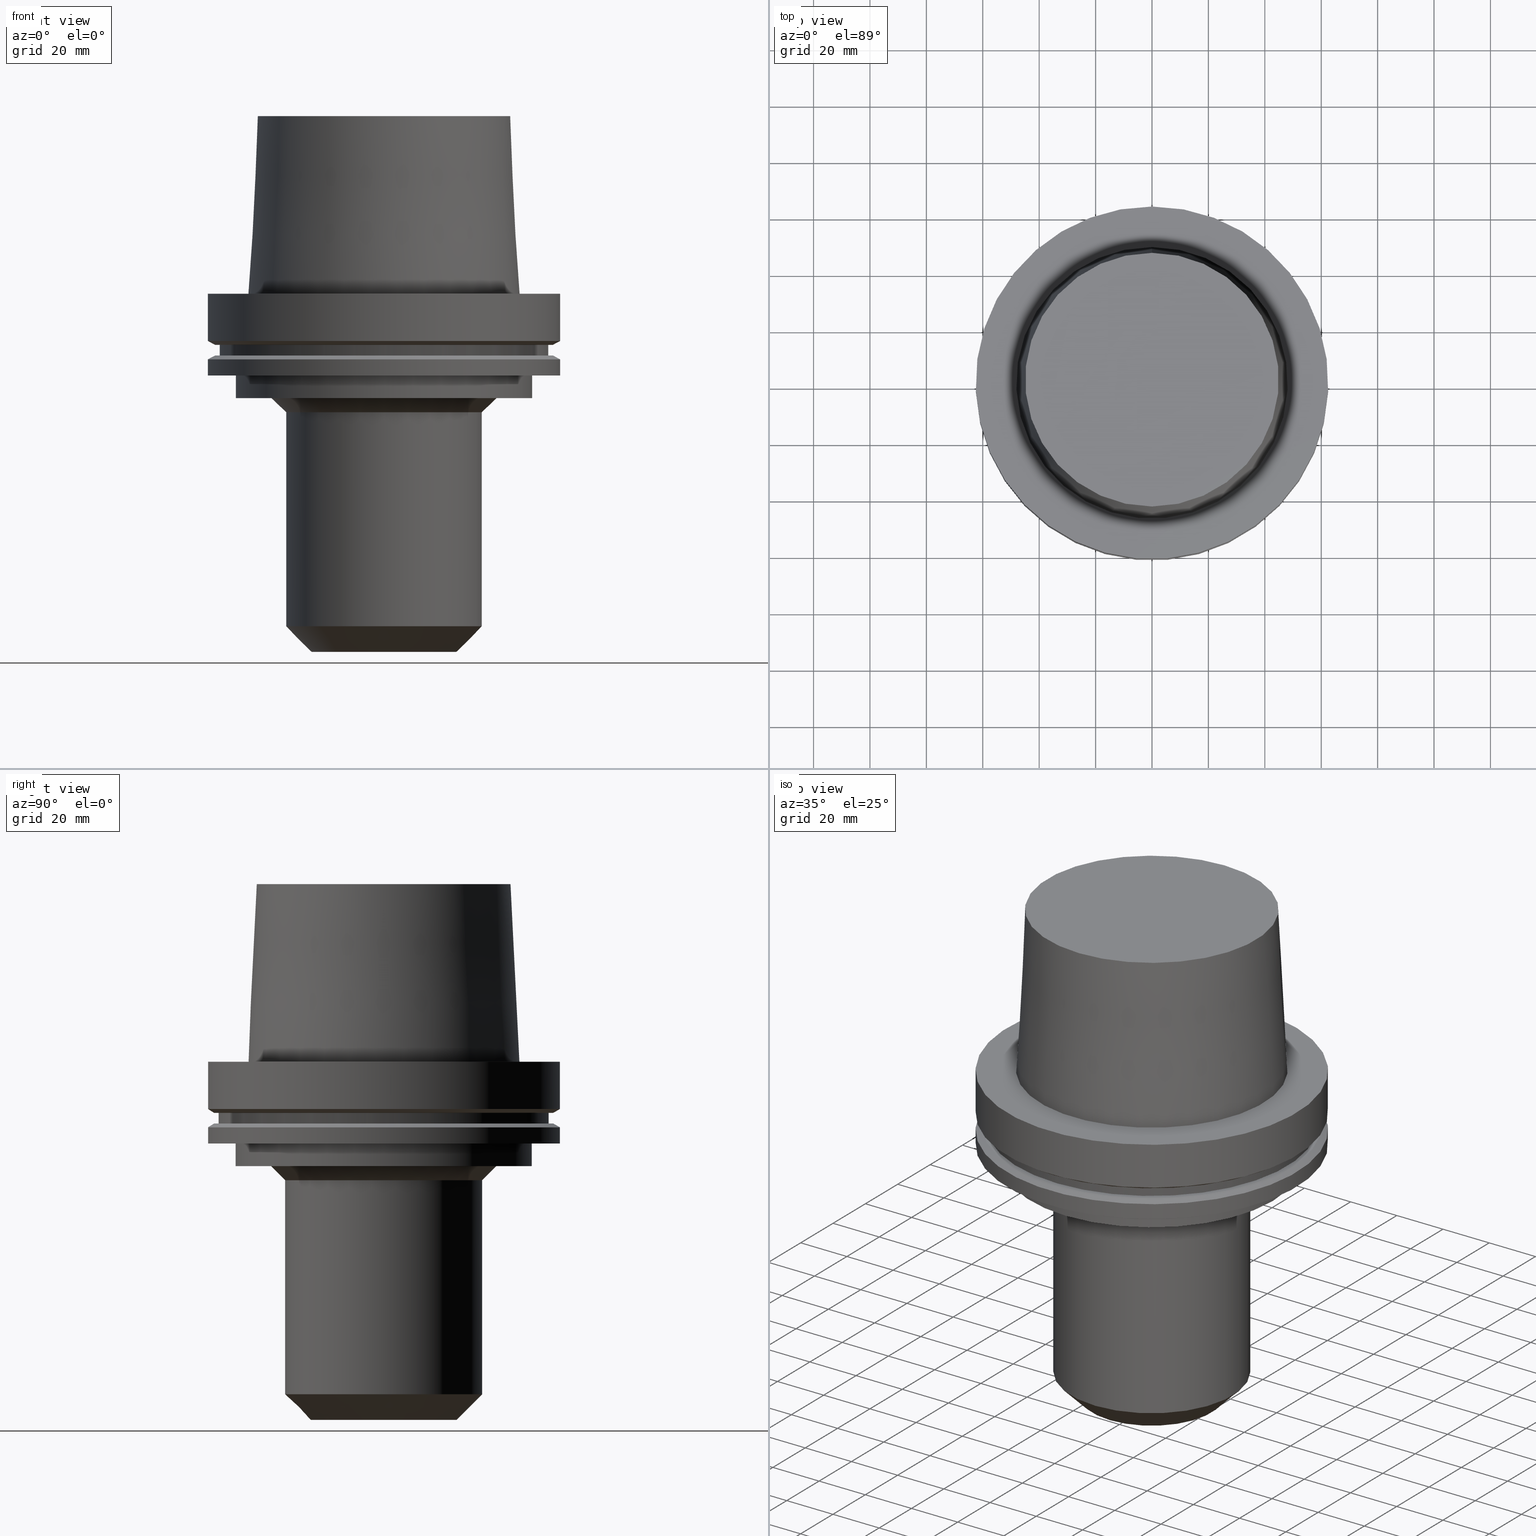
[diagram: canonical four-view strip — front | top / right | iso, engineering-drawing reading convention]
A machine part, canonical four-view strip (front | top / right | iso — engineering-drawing reading convention). The complete STEP part file that produces these views, byte-faithful:
ISO-10303-21;
HEADER;
FILE_DESCRIPTION((''),'1');
FILE_NAME('V:/02_3D_Field-HP\X2\FF71FF6FFF8CFF9F5916\X0\2013/02_Step_Field-HP\X2\FF71FF6FFF8CFF9F5916\X0\2013/HSK-A125-EM1.250-5.stp','2017-07-11T00:21:58',(''),(''),'Spatial Interop R21 SP3','Kubotek KeyCreator 2011 V10.0.2 (22737)',' ');
FILE_SCHEMA(('automotive_design'));
ENDSEC;
DATA;
#1=MECHANICAL_DESIGN_GEOMETRIC_PRESENTATION_REPRESENTATION(' ',(#10,#11,#12,#13,#14,#15,#16,#17,#18,#19,#20,#21,#22,#23,#24,#25,#26,#27,#28,#29,#30,#31,#32,#33,#34,#35,#36,#37,#38,#39,#40,#41,#42,#43),#6);
#2=PRODUCT_DEFINITION_CONTEXT('',#44,'design');
#3=APPLICATION_PROTOCOL_DEFINITION('INTERNATIONAL STANDARD','automotive_design',1994,#44);
#4=PRODUCT_CATEGORY_RELATIONSHIP('NONE','NONE',#45,#46);
#5=SHAPE_DEFINITION_REPRESENTATION(#47,#48);
#6= (GEOMETRIC_REPRESENTATION_CONTEXT(3)GLOBAL_UNCERTAINTY_ASSIGNED_CONTEXT((#51))GLOBAL_UNIT_ASSIGNED_CONTEXT((#53,#54,#55))REPRESENTATION_CONTEXT('NONE','WORKSPACE'));
#10=STYLED_ITEM('',(#57),#58);
#11=STYLED_ITEM('',(#59,#60),#61);
#12=STYLED_ITEM('',(#62,#63),#64);
#13=STYLED_ITEM('',(#65,#66),#67);
#14=STYLED_ITEM('',(#68),#69);
#15=STYLED_ITEM('',(#70,#71),#72);
#16=STYLED_ITEM('',(#73),#74);
#17=STYLED_ITEM('',(#75,#76),#77);
#18=STYLED_ITEM('',(#78),#79);
#19=STYLED_ITEM('',(#80,#81),#82);
#20=STYLED_ITEM('',(#83),#84);
#21=STYLED_ITEM('',(#85),#86);
#22=STYLED_ITEM('',(#87),#88);
#23=STYLED_ITEM('',(#89),#90);
#24=STYLED_ITEM('',(#91),#92);
#25=STYLED_ITEM('',(#93),#94);
#26=STYLED_ITEM('',(#95,#96),#97);
#27=STYLED_ITEM('',(#98),#99);
#28=STYLED_ITEM('',(#100,#101),#102);
#29=STYLED_ITEM('',(#103,#104),#105);
#30=STYLED_ITEM('',(#106),#107);
#31=STYLED_ITEM('',(#108),#109);
#32=STYLED_ITEM('',(#110),#111);
#33=STYLED_ITEM('',(#112),#113);
#34=STYLED_ITEM('',(#114,#115),#116);
#35=STYLED_ITEM('',(#117,#118),#119);
#36=STYLED_ITEM('',(#120,#121),#122);
#37=STYLED_ITEM('',(#123,#124),#125);
#38=STYLED_ITEM('',(#126,#127),#128);
#39=STYLED_ITEM('',(#129,#130),#131);
#40=STYLED_ITEM('',(#132,#133),#134);
#41=STYLED_ITEM('',(#135,#136),#137);
#42=STYLED_ITEM('',(#138,#139),#140);
#43=STYLED_ITEM('',(#141),#142);
#44=APPLICATION_CONTEXT(' ');
#45=PRODUCT_CATEGORY('part','NONE');
#46=PRODUCT_RELATED_PRODUCT_CATEGORY('detail',' ',(#143));
#47=PRODUCT_DEFINITION_SHAPE('NONE','NONE',#144);
#48=ADVANCED_BREP_SHAPE_REPRESENTATION('Unnamed[1]',(#61,#145),#6);
#51=UNCERTAINTY_MEASURE_WITH_UNIT(LENGTH_MEASURE(1.0E-006),#53,'','');
#53= (CONVERSION_BASED_UNIT('MILLIMETRE',#148)LENGTH_UNIT()NAMED_UNIT(#151));
#54= (NAMED_UNIT(#153)PLANE_ANGLE_UNIT()SI_UNIT($,.RADIAN.));
#55= (NAMED_UNIT(#153)SOLID_ANGLE_UNIT()SI_UNIT($,.STERADIAN.));
#57=PRESENTATION_STYLE_ASSIGNMENT((#159));
#58=EDGE_CURVE('Unnamed[1]',#160,#160,#161,.T.);
#59=PRESENTATION_STYLE_ASSIGNMENT((#162));
#60=PRESENTATION_STYLE_ASSIGNMENT((#163));
#61=MANIFOLD_SOLID_BREP('Unnamed[1]',#164);
#62=PRESENTATION_STYLE_ASSIGNMENT((#165));
#63=PRESENTATION_STYLE_ASSIGNMENT((#166));
#64=ADVANCED_FACE('Unnamed[1]',(#167),#168,.T.);
#65=PRESENTATION_STYLE_ASSIGNMENT((#169));
#66=PRESENTATION_STYLE_ASSIGNMENT((#170));
#67=ADVANCED_FACE('Unnamed[1]',(#171,#172),#173,.T.);
#68=PRESENTATION_STYLE_ASSIGNMENT((#174));
#69=EDGE_CURVE('Unnamed[1]',#175,#175,#176,.T.);
#70=PRESENTATION_STYLE_ASSIGNMENT((#177));
#71=PRESENTATION_STYLE_ASSIGNMENT((#178));
#72=ADVANCED_FACE('Unnamed[1]',(#179,#180),#181,.T.);
#73=PRESENTATION_STYLE_ASSIGNMENT((#182));
#74=EDGE_CURVE('Unnamed[1]',#183,#183,#184,.T.);
#75=PRESENTATION_STYLE_ASSIGNMENT((#185));
#76=PRESENTATION_STYLE_ASSIGNMENT((#186));
#77=ADVANCED_FACE('Unnamed[1]',(#187,#188),#189,.T.);
#78=PRESENTATION_STYLE_ASSIGNMENT((#190));
#79=EDGE_CURVE('Unnamed[1]',#191,#191,#192,.T.);
#80=PRESENTATION_STYLE_ASSIGNMENT((#193));
#81=PRESENTATION_STYLE_ASSIGNMENT((#194));
#82=ADVANCED_FACE('Unnamed[1]',(#195,#196),#197,.T.);
#83=PRESENTATION_STYLE_ASSIGNMENT((#198));
#84=EDGE_CURVE('Unnamed[1]',#199,#199,#200,.T.);
#85=PRESENTATION_STYLE_ASSIGNMENT((#201));
#86=EDGE_CURVE('Unnamed[1]',#202,#202,#203,.T.);
#87=PRESENTATION_STYLE_ASSIGNMENT((#204));
#88=EDGE_CURVE('Unnamed[1]',#205,#205,#206,.T.);
#89=PRESENTATION_STYLE_ASSIGNMENT((#207));
#90=EDGE_CURVE('Unnamed[1]',#208,#208,#209,.T.);
#91=PRESENTATION_STYLE_ASSIGNMENT((#210));
#92=EDGE_CURVE('Unnamed[1]',#211,#211,#212,.T.);
#93=PRESENTATION_STYLE_ASSIGNMENT((#213));
#94=EDGE_CURVE('Unnamed[1]',#214,#214,#215,.T.);
#95=PRESENTATION_STYLE_ASSIGNMENT((#216));
#96=PRESENTATION_STYLE_ASSIGNMENT((#217));
#97=ADVANCED_FACE('Unnamed[1]',(#218,#219),#220,.T.);
#98=PRESENTATION_STYLE_ASSIGNMENT((#221));
#99=EDGE_CURVE('Unnamed[1]',#222,#222,#223,.T.);
#100=PRESENTATION_STYLE_ASSIGNMENT((#224));
#101=PRESENTATION_STYLE_ASSIGNMENT((#225));
#102=ADVANCED_FACE('Unnamed[1]',(#226,#227),#228,.T.);
#103=PRESENTATION_STYLE_ASSIGNMENT((#229));
#104=PRESENTATION_STYLE_ASSIGNMENT((#230));
#105=ADVANCED_FACE('Unnamed[1]',(#231,#232),#233,.T.);
#106=PRESENTATION_STYLE_ASSIGNMENT((#234));
#107=EDGE_CURVE('Unnamed[1]',#235,#235,#236,.T.);
#108=PRESENTATION_STYLE_ASSIGNMENT((#237));
#109=EDGE_CURVE('Unnamed[1]',#238,#238,#239,.T.);
#110=PRESENTATION_STYLE_ASSIGNMENT((#240));
#111=EDGE_CURVE('Unnamed[1]',#241,#241,#242,.T.);
#112=PRESENTATION_STYLE_ASSIGNMENT((#243));
#113=EDGE_CURVE('Unnamed[1]',#244,#244,#245,.T.);
#114=PRESENTATION_STYLE_ASSIGNMENT((#246));
#115=PRESENTATION_STYLE_ASSIGNMENT((#247));
#116=ADVANCED_FACE('Unnamed[1]',(#248,#249),#250,.T.);
#117=PRESENTATION_STYLE_ASSIGNMENT((#251));
#118=PRESENTATION_STYLE_ASSIGNMENT((#252));
#119=ADVANCED_FACE('Unnamed[1]',(#253,#254),#255,.T.);
#120=PRESENTATION_STYLE_ASSIGNMENT((#256));
#121=PRESENTATION_STYLE_ASSIGNMENT((#257));
#122=ADVANCED_FACE('Unnamed[1]',(#258,#259),#260,.T.);
#123=PRESENTATION_STYLE_ASSIGNMENT((#261));
#124=PRESENTATION_STYLE_ASSIGNMENT((#262));
#125=ADVANCED_FACE('Unnamed[1]',(#263,#264),#265,.T.);
#126=PRESENTATION_STYLE_ASSIGNMENT((#266));
#127=PRESENTATION_STYLE_ASSIGNMENT((#267));
#128=ADVANCED_FACE('Unnamed[1]',(#268,#269),#270,.T.);
#129=PRESENTATION_STYLE_ASSIGNMENT((#271));
#130=PRESENTATION_STYLE_ASSIGNMENT((#272));
#131=ADVANCED_FACE('Unnamed[1]',(#273,#274),#275,.T.);
#132=PRESENTATION_STYLE_ASSIGNMENT((#276));
#133=PRESENTATION_STYLE_ASSIGNMENT((#277));
#134=ADVANCED_FACE('Unnamed[1]',(#278,#279),#280,.T.);
#135=PRESENTATION_STYLE_ASSIGNMENT((#281));
#136=PRESENTATION_STYLE_ASSIGNMENT((#282));
#137=ADVANCED_FACE('Unnamed[1]',(#283,#284),#285,.T.);
#138=PRESENTATION_STYLE_ASSIGNMENT((#286));
#139=PRESENTATION_STYLE_ASSIGNMENT((#287));
#140=ADVANCED_FACE('Unnamed[1]',(#288),#289,.T.);
#141=PRESENTATION_STYLE_ASSIGNMENT((#290));
#142=EDGE_CURVE('Unnamed[1]',#291,#291,#292,.T.);
#143=PRODUCT('Unnamed[1]','Unnamed[1]','PART-Unnamed[1]-DESC',(#293));
#144=PRODUCT_DEFINITION('NONE','NONE',#294,#2);
#145=AXIS2_PLACEMENT_3D('',#295,#296,#297);
#148=LENGTH_MEASURE_WITH_UNIT(LENGTH_MEASURE(1.0),#298);
#151=DIMENSIONAL_EXPONENTS(1.0,0.0,0.0,0.0,0.0,0.0,0.0);
#153=DIMENSIONAL_EXPONENTS(0.0,0.0,0.0,0.0,0.0,0.0,0.0);
#159=CURVE_STYLE('',#299,POSITIVE_LENGTH_MEASURE(1000.0),#300);
#160=VERTEX_POINT('',#301);
#161=CIRCLE('',#302,34.9249999999999);
#162=SURFACE_STYLE_USAGE(.BOTH.,#303);
#163=CURVE_STYLE('',#304,POSITIVE_LENGTH_MEASURE(1000.0),#305);
#164=CLOSED_SHELL('',(#140,#77,#82,#134,#116,#137,#128,#105,#67,#102,#131,#72,#119,#122,#97,#125,#64));
#165=SURFACE_STYLE_USAGE(.BOTH.,#306);
#166=CURVE_STYLE('',#307,POSITIVE_LENGTH_MEASURE(1000.0),#308);
#167=FACE_OUTER_BOUND('',#309,.T.);
#168=PLANE('',#310);
#169=SURFACE_STYLE_USAGE(.BOTH.,#311);
#170=CURVE_STYLE('',#312,POSITIVE_LENGTH_MEASURE(1000.0),#313);
#171=FACE_BOUND('',#314,.T.);
#172=FACE_BOUND('',#315,.T.);
#173=CONICAL_SURFACE('',#316,61.311297632097,1.04719755119646);
#174=CURVE_STYLE('',#317,POSITIVE_LENGTH_MEASURE(1000.0),#318);
#175=VERTEX_POINT('',#319);
#176=CIRCLE('',#320,39.9249999999998);
#177=SURFACE_STYLE_USAGE(.BOTH.,#321);
#178=CURVE_STYLE('',#322,POSITIVE_LENGTH_MEASURE(1000.0),#323);
#179=FACE_BOUND('',#324,.T.);
#180=FACE_BOUND('',#325,.T.);
#181=CYLINDRICAL_SURFACE('',#326,52.5);
#182=CURVE_STYLE('',#327,POSITIVE_LENGTH_MEASURE(1000.0),#328);
#183=VERTEX_POINT('',#329);
#184=CIRCLE('',#330,44.9779398797591);
#185=SURFACE_STYLE_USAGE(.BOTH.,#331);
#186=CURVE_STYLE('',#332,POSITIVE_LENGTH_MEASURE(1000.0),#333);
#187=FACE_BOUND('',#334,.T.);
#188=FACE_BOUND('',#335,.T.);
#189=CONICAL_SURFACE('',#336,46.5560961923844,0.0500583457465986);
#190=CURVE_STYLE('',#337,POSITIVE_LENGTH_MEASURE(1000.0),#338);
#191=VERTEX_POINT('',#339);
#192=CIRCLE('',#340,48.1342525050097);
#193=SURFACE_STYLE_USAGE(.BOTH.,#341);
#194=CURVE_STYLE('',#342,POSITIVE_LENGTH_MEASURE(1000.0),#343);
#195=FACE_OUTER_BOUND('',#344,.T.);
#196=FACE_BOUND('',#345,.T.);
#197=PLANE('',#346);
#198=CURVE_STYLE('',#347,POSITIVE_LENGTH_MEASURE(1000.0),#348);
#199=VERTEX_POINT('',#349);
#200=CIRCLE('',#350,60.1225952641939);
#201=CURVE_STYLE('',#351,POSITIVE_LENGTH_MEASURE(1000.0),#352);
#202=VERTEX_POINT('',#353);
#203=CIRCLE('',#354,52.4999999999997);
#204=CURVE_STYLE('',#355,POSITIVE_LENGTH_MEASURE(1000.0),#356);
#205=VERTEX_POINT('',#357);
#206=CIRCLE('',#358,58.4999999999998);
#207=CURVE_STYLE('',#359,POSITIVE_LENGTH_MEASURE(1000.0),#360);
#208=VERTEX_POINT('',#361);
#209=CIRCLE('',#362,62.5000000000002);
#210=CURVE_STYLE('',#363,POSITIVE_LENGTH_MEASURE(1000.0),#364);
#211=VERTEX_POINT('',#365);
#212=CIRCLE('',#366,62.5);
#213=CURVE_STYLE('',#367,POSITIVE_LENGTH_MEASURE(1000.0),#368);
#214=VERTEX_POINT('',#369);
#215=CIRCLE('',#370,52.5000000000002);
#216=SURFACE_STYLE_USAGE(.BOTH.,#371);
#217=CURVE_STYLE('',#372,POSITIVE_LENGTH_MEASURE(1000.0),#373);
#218=FACE_BOUND('',#374,.T.);
#219=FACE_BOUND('',#375,.T.);
#220=CYLINDRICAL_SURFACE('',#376,34.9249999999999);
#221=CURVE_STYLE('',#377,POSITIVE_LENGTH_MEASURE(1000.0),#378);
#222=VERTEX_POINT('',#379);
#223=CIRCLE('',#380,62.5);
#224=SURFACE_STYLE_USAGE(.BOTH.,#381);
#225=CURVE_STYLE('',#382,POSITIVE_LENGTH_MEASURE(1000.0),#383);
#226=FACE_BOUND('',#384,.T.);
#227=FACE_BOUND('',#385,.T.);
#228=CYLINDRICAL_SURFACE('',#386,62.5);
#229=SURFACE_STYLE_USAGE(.BOTH.,#387);
#230=CURVE_STYLE('',#388,POSITIVE_LENGTH_MEASURE(1000.0),#389);
#231=FACE_OUTER_BOUND('',#390,.T.);
#232=FACE_BOUND('',#391,.T.);
#233=PLANE('',#392);
#234=CURVE_STYLE('',#393,POSITIVE_LENGTH_MEASURE(1000.0),#394);
#235=VERTEX_POINT('',#395);
#236=CIRCLE('',#396,58.5);
#237=CURVE_STYLE('',#397,POSITIVE_LENGTH_MEASURE(1000.0),#398);
#238=VERTEX_POINT('',#399);
#239=CIRCLE('',#400,62.5);
#240=CURVE_STYLE('',#401,POSITIVE_LENGTH_MEASURE(1000.0),#402);
#241=VERTEX_POINT('',#403);
#242=CIRCLE('',#404,34.9249999999999);
#243=CURVE_STYLE('',#405,POSITIVE_LENGTH_MEASURE(1000.0),#406);
#244=VERTEX_POINT('',#407);
#245=CIRCLE('',#408,25.8249999999999);
#246=SURFACE_STYLE_USAGE(.BOTH.,#409);
#247=CURVE_STYLE('',#410,POSITIVE_LENGTH_MEASURE(1000.0),#411);
#248=FACE_BOUND('',#412,.T.);
#249=FACE_BOUND('',#413,.T.);
#250=CONICAL_SURFACE('',#414,61.3112976320956,1.04719755119668);
#251=SURFACE_STYLE_USAGE(.BOTH.,#415);
#252=CURVE_STYLE('',#416,POSITIVE_LENGTH_MEASURE(1000.0),#417);
#253=FACE_BOUND('',#418,.T.);
#254=FACE_OUTER_BOUND('',#419,.T.);
#255=PLANE('',#420);
#256=SURFACE_STYLE_USAGE(.BOTH.,#421);
#257=CURVE_STYLE('',#422,POSITIVE_LENGTH_MEASURE(1000.0),#423);
#258=FACE_BOUND('',#424,.T.);
#259=FACE_BOUND('',#425,.T.);
#260=CONICAL_SURFACE('',#426,37.4249999999998,0.785398163397448);
#261=SURFACE_STYLE_USAGE(.BOTH.,#427);
#262=CURVE_STYLE('',#428,POSITIVE_LENGTH_MEASURE(1000.0),#429);
#263=FACE_BOUND('',#430,.T.);
#264=FACE_BOUND('',#431,.T.);
#265=CONICAL_SURFACE('',#432,30.3749999999999,0.785398163397461);
#266=SURFACE_STYLE_USAGE(.BOTH.,#433);
#267=CURVE_STYLE('',#434,POSITIVE_LENGTH_MEASURE(1000.0),#435);
#268=FACE_BOUND('',#436,.T.);
#269=FACE_BOUND('',#437,.T.);
#270=CYLINDRICAL_SURFACE('',#438,58.4999999999999);
#271=SURFACE_STYLE_USAGE(.BOTH.,#439);
#272=CURVE_STYLE('',#440,POSITIVE_LENGTH_MEASURE(1000.0),#441);
#273=FACE_BOUND('',#442,.T.);
#274=FACE_OUTER_BOUND('',#443,.T.);
#275=PLANE('',#444);
#276=SURFACE_STYLE_USAGE(.BOTH.,#445);
#277=CURVE_STYLE('',#446,POSITIVE_LENGTH_MEASURE(1000.0),#447);
#278=FACE_BOUND('',#448,.T.);
#279=FACE_BOUND('',#449,.T.);
#280=CYLINDRICAL_SURFACE('',#450,62.5000000000001);
#281=SURFACE_STYLE_USAGE(.BOTH.,#451);
#282=CURVE_STYLE('',#452,POSITIVE_LENGTH_MEASURE(1000.0),#453);
#283=FACE_BOUND('',#454,.T.);
#284=FACE_OUTER_BOUND('',#455,.T.);
#285=PLANE('',#456);
#286=SURFACE_STYLE_USAGE(.BOTH.,#457);
#287=CURVE_STYLE('',#458,POSITIVE_LENGTH_MEASURE(1000.0),#459);
#288=FACE_OUTER_BOUND('',#460,.T.);
#289=PLANE('',#461);
#290=CURVE_STYLE('',#462,POSITIVE_LENGTH_MEASURE(1000.0),#463);
#291=VERTEX_POINT('',#464);
#292=CIRCLE('',#465,60.1225952641912);
#293=PRODUCT_CONTEXT('',#44,'mechanical');
#294=PRODUCT_DEFINITION_FORMATION_WITH_SPECIFIED_SOURCE(' ','NONE',#143,.NOT_KNOWN.);
#295=CARTESIAN_POINT('',(0.0,0.0,0.0));
#296=DIRECTION('',(0.0,0.0,1.0));
#297=DIRECTION('',(1.0,0.0,0.0));
#298= (NAMED_UNIT(#151)LENGTH_UNIT()SI_UNIT(.MILLI.,.METRE.));
#299=DRAUGHTING_PRE_DEFINED_CURVE_FONT('continuous');
#300=COLOUR_RGB('',0.0,1.0,0.0);
#301=CARTESIAN_POINT('',(2.57175827820967E-015,34.9249999999999,-42.0000000000037));
#302=AXIS2_PLACEMENT_3D('',#467,#468,#469);
#303=SURFACE_SIDE_STYLE('',(#470));
#304=DRAUGHTING_PRE_DEFINED_CURVE_FONT('continuous');
#305=COLOUR_RGB('',0.0,1.0,0.0);
#306=SURFACE_SIDE_STYLE('',(#471));
#307=DRAUGHTING_PRE_DEFINED_CURVE_FONT('continuous');
#308=COLOUR_RGB('',0.0,1.0,0.0);
#309=EDGE_LOOP('',(#472));
#310=AXIS2_PLACEMENT_3D('',#473,#474,#475);
#311=SURFACE_SIDE_STYLE('',(#476));
#312=DRAUGHTING_PRE_DEFINED_CURVE_FONT('continuous');
#313=COLOUR_RGB('',0.0,1.0,0.0);
#314=EDGE_LOOP('',(#477));
#315=EDGE_LOOP('',(#478));
#316=AXIS2_PLACEMENT_3D('',#479,#480,#481);
#317=DRAUGHTING_PRE_DEFINED_CURVE_FONT('continuous');
#318=COLOUR_RGB('',0.0,1.0,0.0);
#319=CARTESIAN_POINT('',(2.26559657842284E-015,39.9249999999998,-37.0000000000038));
#320=AXIS2_PLACEMENT_3D('',#482,#483,#484);
#321=SURFACE_SIDE_STYLE('',(#485));
#322=DRAUGHTING_PRE_DEFINED_CURVE_FONT('continuous');
#323=COLOUR_RGB('',0.0,1.0,0.0);
#324=EDGE_LOOP('',(#486));
#325=EDGE_LOOP('',(#487));
#326=AXIS2_PLACEMENT_3D('',#488,#489,#490);
#327=DRAUGHTING_PRE_DEFINED_CURVE_FONT('continuous');
#328=COLOUR_RGB('',0.0,1.0,0.0);
#329=CARTESIAN_POINT('',(-3.85763741731415E-015,44.9779398797591,62.9999999999999));
#330=AXIS2_PLACEMENT_3D('',#491,#492,#493);
#331=SURFACE_SIDE_STYLE('',(#494));
#332=DRAUGHTING_PRE_DEFINED_CURVE_FONT('continuous');
#333=COLOUR_RGB('',0.0,1.0,0.0);
#334=EDGE_LOOP('',(#495));
#335=EDGE_LOOP('',(#496));
#336=AXIS2_PLACEMENT_3D('',#497,#498,#499);
#337=DRAUGHTING_PRE_DEFINED_CURVE_FONT('continuous');
#338=COLOUR_RGB('',0.0,1.0,0.0);
#339=CARTESIAN_POINT('',(4.05732016845377E-029,48.1342525050097,-6.66405254174039E-013));
#340=AXIS2_PLACEMENT_3D('',#500,#501,#502);
#341=SURFACE_SIDE_STYLE('',(#503));
#342=DRAUGHTING_PRE_DEFINED_CURVE_FONT('continuous');
#343=COLOUR_RGB('',0.0,1.0,0.0);
#344=EDGE_LOOP('',(#504));
#345=EDGE_LOOP('',(#505));
#346=AXIS2_PLACEMENT_3D('',#506,#507,#508);
#347=DRAUGHTING_PRE_DEFINED_CURVE_FONT('continuous');
#348=COLOUR_RGB('',0.0,1.0,0.0);
#349=CARTESIAN_POINT('',(1.33945743656747E-015,60.1225952641939,-21.8750000000009));
#350=AXIS2_PLACEMENT_3D('',#509,#510,#511);
#351=DRAUGHTING_PRE_DEFINED_CURVE_FONT('continuous');
#352=COLOUR_RGB('',0.0,1.0,0.0);
#353=CARTESIAN_POINT('',(2.26559657842284E-015,52.4999999999997,-37.0000000000038));
#354=AXIS2_PLACEMENT_3D('',#512,#513,#514);
#355=DRAUGHTING_PRE_DEFINED_CURVE_FONT('continuous');
#356=COLOUR_RGB('',0.0,1.0,0.0);
#357=CARTESIAN_POINT('',(1.33945743656732E-015,58.4999999999998,-21.8749999999984));
#358=AXIS2_PLACEMENT_3D('',#515,#516,#517);
#359=DRAUGHTING_PRE_DEFINED_CURVE_FONT('continuous');
#360=COLOUR_RGB('',0.0,1.0,0.0);
#361=CARTESIAN_POINT('',(-3.85035867761049E-030,62.5000000000002,5.7954042494671E-014));
#362=AXIS2_PLACEMENT_3D('',#518,#519,#520);
#363=DRAUGHTING_PRE_DEFINED_CURVE_FONT('continuous');
#364=COLOUR_RGB('',0.0,1.0,0.0);
#365=CARTESIAN_POINT('',(1.02578894188644E-015,62.5,-16.7524047358084));
#366=AXIS2_PLACEMENT_3D('',#521,#522,#523);
#367=DRAUGHTING_PRE_DEFINED_CURVE_FONT('continuous');
#368=COLOUR_RGB('',0.0,1.0,0.0);
#369=CARTESIAN_POINT('',(1.77573785876367E-015,52.5000000000002,-29.0000000000001));
#370=AXIS2_PLACEMENT_3D('',#524,#525,#526);
#371=SURFACE_SIDE_STYLE('',(#527));
#372=DRAUGHTING_PRE_DEFINED_CURVE_FONT('continuous');
#373=COLOUR_RGB('',0.0,1.0,0.0);
#374=EDGE_LOOP('',(#528));
#375=EDGE_LOOP('',(#529));
#376=AXIS2_PLACEMENT_3D('',#530,#531,#532);
#377=DRAUGHTING_PRE_DEFINED_CURVE_FONT('continuous');
#378=COLOUR_RGB('',0.0,1.0,0.0);
#379=CARTESIAN_POINT('',(1.77573785876367E-015,62.5,-29.0000000000001));
#380=AXIS2_PLACEMENT_3D('',#533,#534,#535);
#381=SURFACE_SIDE_STYLE('',(#536));
#382=DRAUGHTING_PRE_DEFINED_CURVE_FONT('continuous');
#383=COLOUR_RGB('',0.0,1.0,0.0);
#384=EDGE_LOOP('',(#537));
#385=EDGE_LOOP('',(#538));
#386=AXIS2_PLACEMENT_3D('',#539,#540,#541);
#387=SURFACE_SIDE_STYLE('',(#542));
#388=DRAUGHTING_PRE_DEFINED_CURVE_FONT('continuous');
#389=COLOUR_RGB('',0.0,1.0,0.0);
#390=EDGE_LOOP('',(#543));
#391=EDGE_LOOP('',(#544));
#392=AXIS2_PLACEMENT_3D('',#545,#546,#547);
#393=DRAUGHTING_PRE_DEFINED_CURVE_FONT('continuous');
#394=COLOUR_RGB('',0.0,1.0,0.0);
#395=CARTESIAN_POINT('',(1.10983616172739E-015,58.5,-18.1250000000017));
#396=AXIS2_PLACEMENT_3D('',#548,#549,#550);
#397=DRAUGHTING_PRE_DEFINED_CURVE_FONT('continuous');
#398=COLOUR_RGB('',0.0,1.0,0.0);
#399=CARTESIAN_POINT('',(1.42350465640827E-015,62.5,-23.2475952641916));
#400=AXIS2_PLACEMENT_3D('',#551,#552,#553);
#401=DRAUGHTING_PRE_DEFINED_CURVE_FONT('continuous');
#402=COLOUR_RGB('',0.0,1.0,0.0);
#403=CARTESIAN_POINT('',(7.21929288097387E-015,34.9249999999999,-117.900000000004));
#404=AXIS2_PLACEMENT_3D('',#554,#555,#556);
#405=DRAUGHTING_PRE_DEFINED_CURVE_FONT('continuous');
#406=COLOUR_RGB('',0.0,1.0,0.0);
#407=CARTESIAN_POINT('',(7.77650717458589E-015,25.825,-127.000000000003));
#408=AXIS2_PLACEMENT_3D('',#557,#558,#559);
#409=SURFACE_SIDE_STYLE('',(#560));
#410=DRAUGHTING_PRE_DEFINED_CURVE_FONT('continuous');
#411=COLOUR_RGB('',0.0,1.0,0.0);
#412=EDGE_LOOP('',(#561));
#413=EDGE_LOOP('',(#562));
#414=AXIS2_PLACEMENT_3D('',#563,#564,#565);
#415=SURFACE_SIDE_STYLE('',(#566));
#416=DRAUGHTING_PRE_DEFINED_CURVE_FONT('continuous');
#417=COLOUR_RGB('',0.0,1.0,0.0);
#418=EDGE_LOOP('',(#567));
#419=EDGE_LOOP('',(#568));
#420=AXIS2_PLACEMENT_3D('',#569,#570,#571);
#421=SURFACE_SIDE_STYLE('',(#572));
#422=DRAUGHTING_PRE_DEFINED_CURVE_FONT('continuous');
#423=COLOUR_RGB('',0.0,1.0,0.0);
#424=EDGE_LOOP('',(#573));
#425=EDGE_LOOP('',(#574));
#426=AXIS2_PLACEMENT_3D('',#575,#576,#577);
#427=SURFACE_SIDE_STYLE('',(#578));
#428=DRAUGHTING_PRE_DEFINED_CURVE_FONT('continuous');
#429=COLOUR_RGB('',0.0,1.0,0.0);
#430=EDGE_LOOP('',(#579));
#431=EDGE_LOOP('',(#580));
#432=AXIS2_PLACEMENT_3D('',#581,#582,#583);
#433=SURFACE_SIDE_STYLE('',(#584));
#434=DRAUGHTING_PRE_DEFINED_CURVE_FONT('continuous');
#435=COLOUR_RGB('',0.0,1.0,0.0);
#436=EDGE_LOOP('',(#585));
#437=EDGE_LOOP('',(#586));
#438=AXIS2_PLACEMENT_3D('',#587,#588,#589);
#439=SURFACE_SIDE_STYLE('',(#590));
#440=DRAUGHTING_PRE_DEFINED_CURVE_FONT('continuous');
#441=COLOUR_RGB('',0.0,1.0,0.0);
#442=EDGE_LOOP('',(#591));
#443=EDGE_LOOP('',(#592));
#444=AXIS2_PLACEMENT_3D('',#593,#594,#595);
#445=SURFACE_SIDE_STYLE('',(#596));
#446=DRAUGHTING_PRE_DEFINED_CURVE_FONT('continuous');
#447=COLOUR_RGB('',0.0,1.0,0.0);
#448=EDGE_LOOP('',(#597));
#449=EDGE_LOOP('',(#598));
#450=AXIS2_PLACEMENT_3D('',#599,#600,#601);
#451=SURFACE_SIDE_STYLE('',(#602));
#452=DRAUGHTING_PRE_DEFINED_CURVE_FONT('continuous');
#453=COLOUR_RGB('',0.0,1.0,0.0);
#454=EDGE_LOOP('',(#603));
#455=EDGE_LOOP('',(#604));
#456=AXIS2_PLACEMENT_3D('',#605,#606,#607);
#457=SURFACE_SIDE_STYLE('',(#608));
#458=DRAUGHTING_PRE_DEFINED_CURVE_FONT('continuous');
#459=COLOUR_RGB('',0.0,1.0,0.0);
#460=EDGE_LOOP('',(#609));
#461=AXIS2_PLACEMENT_3D('',#610,#611,#612);
#462=DRAUGHTING_PRE_DEFINED_CURVE_FONT('continuous');
#463=COLOUR_RGB('',0.0,1.0,0.0);
#464=CARTESIAN_POINT('',(1.10983616172729E-015,60.1225952641912,-18.1250000000001));
#465=AXIS2_PLACEMENT_3D('',#613,#614,#615);
#467=CARTESIAN_POINT('',(2.57175827820967E-015,5.14351655641934E-015,-42.0000000000037));
#468=DIRECTION('',(6.12323399573677E-017,1.22464679914735E-016,-1.0));
#469=DIRECTION('',(-1.23259516440783E-032,1.0,1.22464679914735E-016));
#470=SURFACE_STYLE_FILL_AREA(#616);
#471=SURFACE_STYLE_FILL_AREA(#617);
#472=ORIENTED_EDGE('',*,*,#113,.T.);
#473=CARTESIAN_POINT('',(7.77650717458589E-015,12.9125,-127.000000000003));
#474=DIRECTION('',(6.12323399573677E-017,1.22464679914735E-016,-1.0));
#475=DIRECTION('',(-1.23259516440783E-032,1.0,1.22464679914735E-016));
#476=SURFACE_STYLE_FILL_AREA(#618);
#477=ORIENTED_EDGE('',*,*,#109,.F.);
#478=ORIENTED_EDGE('',*,*,#84,.T.);
#479=CARTESIAN_POINT('',(1.38148104648787E-015,2.76296209297574E-015,-22.5612976320963));
#480=DIRECTION('',(6.12323399573677E-017,1.22464679914735E-016,-1.0));
#481=DIRECTION('',(-1.23259516440783E-032,1.0,1.22464679914735E-016));
#482=CARTESIAN_POINT('',(2.26559657842284E-015,4.53119315684567E-015,-37.0000000000038));
#483=DIRECTION('',(6.12323399573677E-017,1.22464679914735E-016,-1.0));
#484=DIRECTION('',(-1.23259516440783E-032,1.0,1.22464679914735E-016));
#485=SURFACE_STYLE_FILL_AREA(#619);
#486=ORIENTED_EDGE('',*,*,#86,.F.);
#487=ORIENTED_EDGE('',*,*,#94,.T.);
#488=CARTESIAN_POINT('',(2.02066721859325E-015,4.04133443718651E-015,-33.000000000002));
#489=DIRECTION('',(6.12323399573677E-017,1.22464679914735E-016,-1.0));
#490=DIRECTION('',(-1.23259516440783E-032,1.0,1.22464679914735E-016));
#491=CARTESIAN_POINT('',(-3.85763741731415E-015,-7.71527483462831E-015,62.9999999999999));
#492=DIRECTION('',(6.12323399573677E-017,1.22464679914735E-016,-1.0));
#493=DIRECTION('',(-1.23259516440783E-032,1.0,1.22464679914735E-016));
#494=SURFACE_STYLE_FILL_AREA(#620);
#495=ORIENTED_EDGE('',*,*,#79,.F.);
#496=ORIENTED_EDGE('',*,*,#74,.T.);
#497=CARTESIAN_POINT('',(-1.92881870865706E-015,-3.85763741731411E-015,31.4999999999996));
#498=DIRECTION('',(6.12323399573677E-017,1.22464679914735E-016,-1.0));
#499=DIRECTION('',(-1.23259516440783E-032,1.0,1.22464679914735E-016));
#500=CARTESIAN_POINT('',(4.08977026892825E-029,8.1795405378565E-029,-6.67910171614494E-013));
#501=DIRECTION('',(6.12323399573677E-017,1.22464679914735E-016,-1.0));
#502=DIRECTION('',(-1.23259516440783E-032,1.0,1.22464679914735E-016));
#503=SURFACE_STYLE_FILL_AREA(#621);
#504=ORIENTED_EDGE('',*,*,#90,.F.);
#505=ORIENTED_EDGE('',*,*,#79,.T.);
#506=CARTESIAN_POINT('',(1.83614215034636E-029,55.317126252505,-3.04225605839684E-013));
#507=DIRECTION('',(-6.12323399573677E-017,-5.04226666187264E-014,1.0));
#508=DIRECTION('',(3.09232501668564E-030,-1.0,-5.04226666187264E-014));
#509=CARTESIAN_POINT('',(1.33945743656747E-015,2.67891487313495E-015,-21.8750000000009));
#510=DIRECTION('',(6.12323399573677E-017,1.22464679914735E-016,-1.0));
#511=DIRECTION('',(-1.23259516440783E-032,1.0,1.22464679914735E-016));
#512=CARTESIAN_POINT('',(2.26559657842284E-015,4.53119315684567E-015,-37.0000000000038));
#513=DIRECTION('',(6.12323399573677E-017,1.22464679914735E-016,-1.0));
#514=DIRECTION('',(-1.23259516440783E-032,1.0,1.22464679914735E-016));
#515=CARTESIAN_POINT('',(1.33945743656732E-015,2.67891487313464E-015,-21.8749999999984));
#516=DIRECTION('',(6.12323399573677E-017,1.22464679914735E-016,-1.0));
#517=DIRECTION('',(-1.23259516440783E-032,1.0,1.22464679914735E-016));
#518=CARTESIAN_POINT('',(-3.48065554802404E-030,-6.96131109604808E-030,5.6843418860808E-014));
#519=DIRECTION('',(6.12323399573677E-017,1.22464679914735E-016,-1.0));
#520=DIRECTION('',(-1.23259516440783E-032,1.0,1.22464679914735E-016));
#521=CARTESIAN_POINT('',(1.02578894188644E-015,2.05157788377287E-015,-16.7524047358084));
#522=DIRECTION('',(6.12323399573677E-017,1.22464679914735E-016,-1.0));
#523=DIRECTION('',(-1.23259516440783E-032,1.0,1.22464679914735E-016));
#524=CARTESIAN_POINT('',(1.77573785876367E-015,3.55147571752733E-015,-29.0000000000001));
#525=DIRECTION('',(6.12323399573676E-017,1.22464679914735E-016,-1.0));
#526=DIRECTION('',(-1.23259516440783E-032,1.0,1.22464679914735E-016));
#527=SURFACE_STYLE_FILL_AREA(#622);
#528=ORIENTED_EDGE('',*,*,#111,.F.);
#529=ORIENTED_EDGE('',*,*,#58,.T.);
#530=CARTESIAN_POINT('',(4.89552557959177E-015,9.79105115918353E-015,-79.9500000000037));
#531=DIRECTION('',(6.12323399573677E-017,1.22464679914735E-016,-1.0));
#532=DIRECTION('',(-1.23259516440783E-032,1.0,1.22464679914735E-016));
#533=CARTESIAN_POINT('',(1.77573785876367E-015,3.55147571752733E-015,-29.0000000000001));
#534=DIRECTION('',(6.12323399573677E-017,1.22464679914735E-016,-1.0));
#535=DIRECTION('',(-1.23259516440783E-032,1.0,1.22464679914735E-016));
#536=SURFACE_STYLE_FILL_AREA(#623);
#537=ORIENTED_EDGE('',*,*,#99,.F.);
#538=ORIENTED_EDGE('',*,*,#109,.T.);
#539=CARTESIAN_POINT('',(1.59962125758597E-015,3.19924251517194E-015,-26.1237976320959));
#540=DIRECTION('',(6.12323399573677E-017,1.22464679914735E-016,-1.0));
#541=DIRECTION('',(-1.23259516440783E-032,1.0,1.22464679914735E-016));
#542=SURFACE_STYLE_FILL_AREA(#624);
#543=ORIENTED_EDGE('',*,*,#84,.F.);
#544=ORIENTED_EDGE('',*,*,#88,.T.);
#545=CARTESIAN_POINT('',(1.3394574365674E-015,59.3112976320969,-21.8749999999997));
#546=DIRECTION('',(-6.12323399573677E-017,1.54130347502767E-012,1.0));
#547=DIRECTION('',(-9.43727912076354E-029,-1.0,1.54130347502767E-012));
#548=CARTESIAN_POINT('',(1.10983616172739E-015,2.21967232345479E-015,-18.1250000000017));
#549=DIRECTION('',(6.12323399573677E-017,1.22464679914735E-016,-1.0));
#550=DIRECTION('',(-1.23259516440783E-032,1.0,1.22464679914735E-016));
#551=CARTESIAN_POINT('',(1.42350465640827E-015,2.84700931281654E-015,-23.2475952641916));
#552=DIRECTION('',(6.12323399573677E-017,1.22464679914735E-016,-1.0));
#553=DIRECTION('',(-1.23259516440783E-032,1.0,1.22464679914735E-016));
#554=CARTESIAN_POINT('',(7.21929288097387E-015,1.44385857619477E-014,-117.900000000004));
#555=DIRECTION('',(6.12323399573677E-017,1.22464679914735E-016,-1.0));
#556=DIRECTION('',(-1.23259516440783E-032,1.0,1.22464679914735E-016));
#557=CARTESIAN_POINT('',(7.77650717458589E-015,1.55530143491718E-014,-127.000000000003));
#558=DIRECTION('',(6.12323399573677E-017,1.22464679914735E-016,-1.0));
#559=DIRECTION('',(-1.23259516440783E-032,1.0,1.22464679914735E-016));
#560=SURFACE_STYLE_FILL_AREA(#625);
#561=ORIENTED_EDGE('',*,*,#142,.F.);
#562=ORIENTED_EDGE('',*,*,#92,.T.);
#563=CARTESIAN_POINT('',(1.06781255180687E-015,2.13562510361373E-015,-17.4387023679043));
#564=DIRECTION('',(-6.12323399573677E-017,-1.22464679914735E-016,1.0));
#565=DIRECTION('',(-1.23259516440783E-032,1.0,1.22464679914735E-016));
#566=SURFACE_STYLE_FILL_AREA(#626);
#567=ORIENTED_EDGE('',*,*,#69,.F.);
#568=ORIENTED_EDGE('',*,*,#86,.T.);
#569=CARTESIAN_POINT('',(2.26559657842284E-015,46.2124999999997,-37.0000000000038));
#570=DIRECTION('',(6.12323399573677E-017,1.22464679914735E-016,-1.0));
#571=DIRECTION('',(-1.23259516440783E-032,1.0,1.22464679914735E-016));
#572=SURFACE_STYLE_FILL_AREA(#627);
#573=ORIENTED_EDGE('',*,*,#58,.F.);
#574=ORIENTED_EDGE('',*,*,#69,.T.);
#575=CARTESIAN_POINT('',(2.41867742831625E-015,4.83735485663251E-015,-39.5000000000038));
#576=DIRECTION('',(-6.12323399573677E-017,-1.22464679914735E-016,1.0));
#577=DIRECTION('',(-1.23259516440783E-032,1.0,1.22464679914735E-016));
#578=SURFACE_STYLE_FILL_AREA(#628);
#579=ORIENTED_EDGE('',*,*,#113,.F.);
#580=ORIENTED_EDGE('',*,*,#111,.T.);
#581=CARTESIAN_POINT('',(7.49790002777988E-015,1.49958000555598E-014,-122.450000000003));
#582=DIRECTION('',(-6.12323399573677E-017,-1.22464679914735E-016,1.0));
#583=DIRECTION('',(-1.23259516440783E-032,1.0,1.22464679914735E-016));
#584=SURFACE_STYLE_FILL_AREA(#629);
#585=ORIENTED_EDGE('',*,*,#88,.F.);
#586=ORIENTED_EDGE('',*,*,#107,.T.);
#587=CARTESIAN_POINT('',(1.22464679914736E-015,2.44929359829471E-015,-20.0000000000001));
#588=DIRECTION('',(6.12323399573677E-017,1.22464679914735E-016,-1.0));
#589=DIRECTION('',(-1.23259516440783E-032,1.0,1.22464679914735E-016));
#590=SURFACE_STYLE_FILL_AREA(#630);
#591=ORIENTED_EDGE('',*,*,#94,.F.);
#592=ORIENTED_EDGE('',*,*,#99,.T.);
#593=CARTESIAN_POINT('',(1.77573785876367E-015,57.5000000000001,-29.0000000000001));
#594=DIRECTION('',(6.12323399573677E-017,1.22464679914735E-016,-1.0));
#595=DIRECTION('',(-1.23259516440783E-032,1.0,1.22464679914735E-016));
#596=SURFACE_STYLE_FILL_AREA(#631);
#597=ORIENTED_EDGE('',*,*,#92,.F.);
#598=ORIENTED_EDGE('',*,*,#90,.T.);
#599=CARTESIAN_POINT('',(5.12894470943217E-016,1.02578894188643E-015,-8.37620236790418));
#600=DIRECTION('',(6.12323399573677E-017,1.22464679914735E-016,-1.0));
#601=DIRECTION('',(-1.23259516440783E-032,1.0,1.22464679914735E-016));
#602=SURFACE_STYLE_FILL_AREA(#632);
#603=ORIENTED_EDGE('',*,*,#107,.F.);
#604=ORIENTED_EDGE('',*,*,#142,.T.);
#605=CARTESIAN_POINT('',(1.10983616172734E-015,59.3112976320956,-18.1250000000009));
#606=DIRECTION('',(6.12323399573677E-017,9.91977508271999E-013,-1.0));
#607=DIRECTION('',(-6.07459311693043E-029,1.0,9.91977508271999E-013));
#608=SURFACE_STYLE_FILL_AREA(#633);
#609=ORIENTED_EDGE('',*,*,#74,.F.);
#610=CARTESIAN_POINT('',(-3.85763741731415E-015,22.4889699398795,62.9999999999999));
#611=DIRECTION('',(-6.12323399573677E-017,-1.22464679914735E-016,1.0));
#612=DIRECTION('',(1.23259516440783E-032,-1.0,-1.22464679914735E-016));
#613=CARTESIAN_POINT('',(1.1098361617273E-015,2.21967232345459E-015,-18.1250000000001));
#614=DIRECTION('',(6.12323399573677E-017,1.22464679914735E-016,-1.0));
#615=DIRECTION('',(-1.23259516440783E-032,1.0,1.22464679914735E-016));
#616=FILL_AREA_STYLE('',(#634));
#617=FILL_AREA_STYLE('',(#635));
#618=FILL_AREA_STYLE('',(#636));
#619=FILL_AREA_STYLE('',(#637));
#620=FILL_AREA_STYLE('',(#638));
#621=FILL_AREA_STYLE('',(#639));
#622=FILL_AREA_STYLE('',(#640));
#623=FILL_AREA_STYLE('',(#641));
#624=FILL_AREA_STYLE('',(#642));
#625=FILL_AREA_STYLE('',(#643));
#626=FILL_AREA_STYLE('',(#644));
#627=FILL_AREA_STYLE('',(#645));
#628=FILL_AREA_STYLE('',(#646));
#629=FILL_AREA_STYLE('',(#647));
#630=FILL_AREA_STYLE('',(#648));
#631=FILL_AREA_STYLE('',(#649));
#632=FILL_AREA_STYLE('',(#650));
#633=FILL_AREA_STYLE('',(#651));
#634=FILL_AREA_STYLE_COLOUR('',#652);
#635=FILL_AREA_STYLE_COLOUR('',#653);
#636=FILL_AREA_STYLE_COLOUR('',#654);
#637=FILL_AREA_STYLE_COLOUR('',#655);
#638=FILL_AREA_STYLE_COLOUR('',#656);
#639=FILL_AREA_STYLE_COLOUR('',#657);
#640=FILL_AREA_STYLE_COLOUR('',#658);
#641=FILL_AREA_STYLE_COLOUR('',#659);
#642=FILL_AREA_STYLE_COLOUR('',#660);
#643=FILL_AREA_STYLE_COLOUR('',#661);
#644=FILL_AREA_STYLE_COLOUR('',#662);
#645=FILL_AREA_STYLE_COLOUR('',#663);
#646=FILL_AREA_STYLE_COLOUR('',#664);
#647=FILL_AREA_STYLE_COLOUR('',#665);
#648=FILL_AREA_STYLE_COLOUR('',#666);
#649=FILL_AREA_STYLE_COLOUR('',#667);
#650=FILL_AREA_STYLE_COLOUR('',#668);
#651=FILL_AREA_STYLE_COLOUR('',#669);
#652=COLOUR_RGB('',0.0,1.0,0.0);
#653=COLOUR_RGB('',0.0,1.0,0.0);
#654=COLOUR_RGB('',0.0,1.0,0.0);
#655=COLOUR_RGB('',0.0,1.0,0.0);
#656=COLOUR_RGB('',0.0,1.0,0.0);
#657=COLOUR_RGB('',0.0,1.0,0.0);
#658=COLOUR_RGB('',0.0,1.0,0.0);
#659=COLOUR_RGB('',0.0,1.0,0.0);
#660=COLOUR_RGB('',0.0,1.0,0.0);
#661=COLOUR_RGB('',0.0,1.0,0.0);
#662=COLOUR_RGB('',0.0,1.0,0.0);
#663=COLOUR_RGB('',0.0,1.0,0.0);
#664=COLOUR_RGB('',0.0,1.0,0.0);
#665=COLOUR_RGB('',0.0,1.0,0.0);
#666=COLOUR_RGB('',0.0,1.0,0.0);
#667=COLOUR_RGB('',0.0,1.0,0.0);
#668=COLOUR_RGB('',0.0,1.0,0.0);
#669=COLOUR_RGB('',0.0,1.0,0.0);
ENDSEC;
END-ISO-10303-21;
